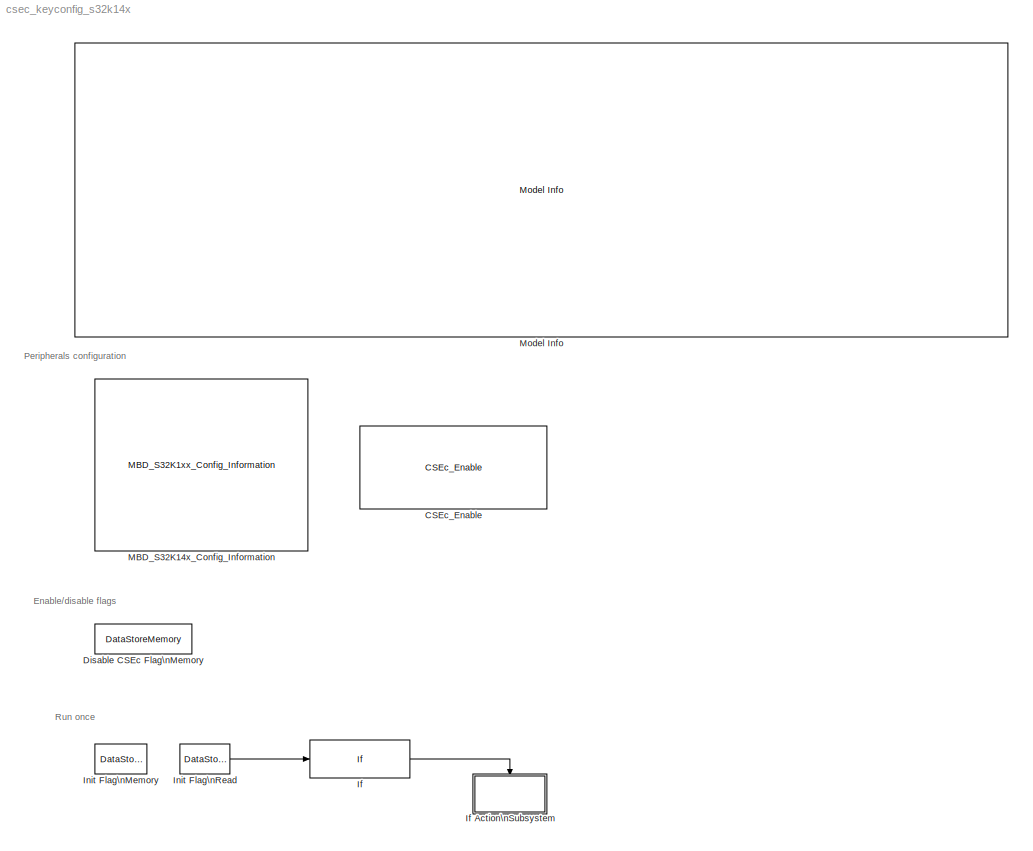
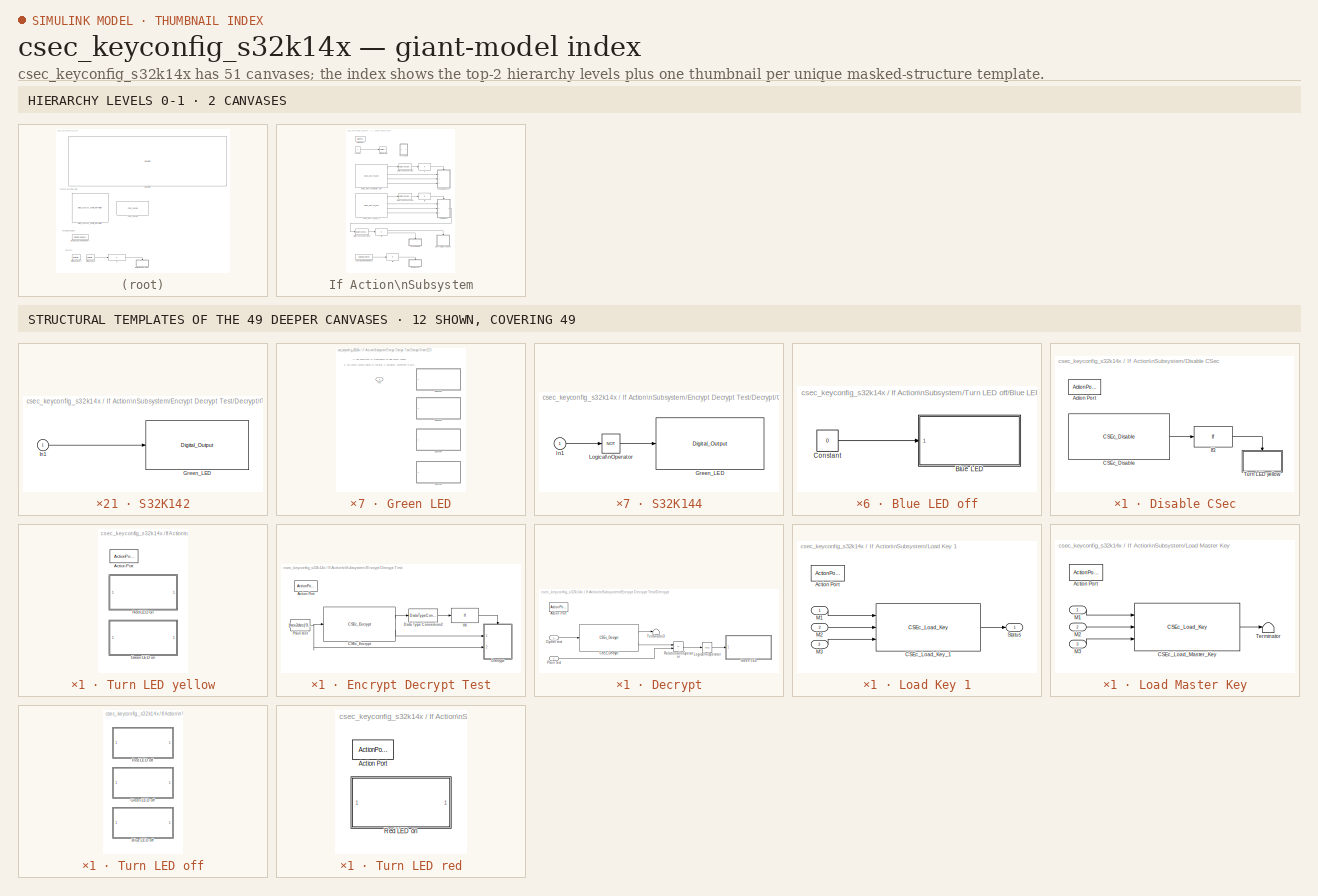
[diagram: thumbnail index - top-2 hierarchy levels (2 canvases) + 12 structural-template representatives of the remaining 49 canvases]
MODEL csec_keyconfig_s32k14x
KIND model
CONFIG InitFcn = mbd_s32k_consistency_checks(bdroot(gcs));
CONFIG PreLoadFcn = mbd_s32k_examples_preload_cbk;
BLOCK [Reference] CSEc_Enable  REF=mbd_s32k1xx_ec_toolbox/Core and System Blocks/CSEc Blocks/CSEc_Enable
  Ports = []
  SID = 480
  SourceBlock = mbd_s32k1xx_ec_toolbox/Core and System Blocks/CSEc Blocks/CSEc_Enable
  SourceType = csec_s32k_enable
  csec_num_user_keys = 20 keys
BLOCK [DataStoreMemory] Disable CSEc Flag\nMemory
  DataStoreName = disable_csec_flag
  InitialValue = 1
  OutDataTypeStr = uint32
  ReadBeforeWriteMsg = warning
  SID = 493
  ShowAdditionalParam = off
  WriteAfterReadMsg = warning
  WriteAfterWriteMsg = warning
BLOCK [If] If
  IfExpression = u1 == 0
  Ports = [1, 1]
  SID = 144
  ShowElse = off
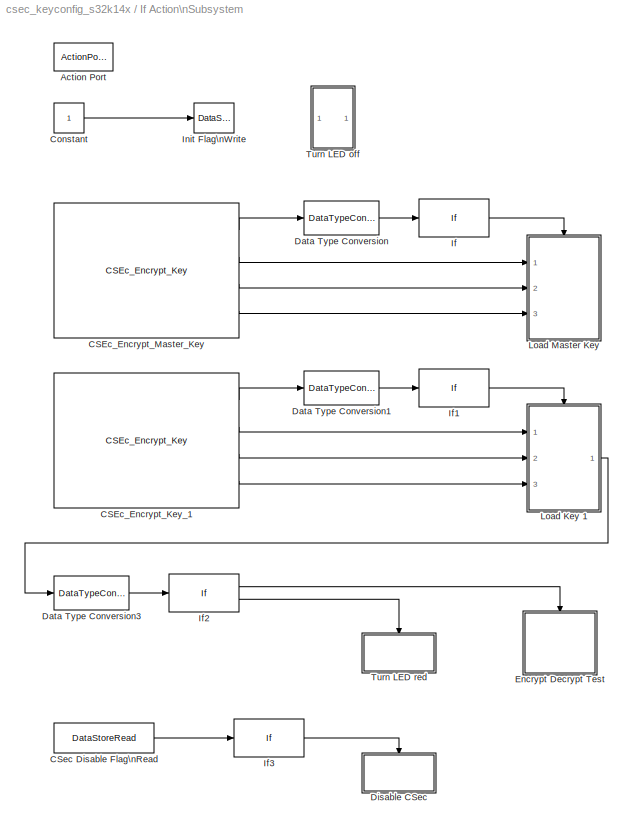
BLOCK [SubSystem] If Action\nSubsystem
  Ports = [0, 0, 0, 0, 0, 0, 0, 1]
  RequestExecContextInheritance = off
  SID = 145
  TreatAsAtomicUnit = on
  Variant = off
BLOCK [ActionPort] If Action\nSubsystem/Action Port
  SID = 147
BLOCK [Reference] If Action\nSubsystem/CSEc_Encrypt_Key_1  REF=mbd_s32k1xx_ec_toolbox/Core and System Blocks/CSEc Blocks/CSEc_Encrypt_Key
  Ports = [0, 4]
  Priority = 3
  SID = 519
  SourceBlock = mbd_s32k1xx_ec_toolbox/Core and System Blocks/CSEc Blocks/CSEc_Encrypt_Key
  SourceType = csec_s32k_encrypt_key
  csec_auth_key = {'0x00', '0x01', '0x02', '0x03', '0x04', '0x05', '0x06', '0x07', '0x08', '0x09', '0x0a', '0x0b', '0x0c', '0x0d', '0x0e', '0x0f'}
  csec_auth_key_id = MASTER_ECU
  csec_counter = 1
  csec_key = {'0x00', '0x01', '0x02', '0x03', '0x04', '0x05', '0x06', '0x07', '0x08', '0x09', '0x0a', '0x0b', '0x0c', '0x0d', '0x0e', '0x0f'}
  csec_key_id = KEY_1
BLOCK [Reference] If Action\nSubsystem/CSEc_Encrypt_Master_Key  REF=mbd_s32k1xx_ec_toolbox/Core and System Blocks/CSEc Blocks/CSEc_Encrypt_Key
  Ports = [0, 4]
  Priority = 2
  SID = 518
  SourceBlock = mbd_s32k1xx_ec_toolbox/Core and System Blocks/CSEc Blocks/CSEc_Encrypt_Key
  SourceType = csec_s32k_encrypt_key
  csec_auth_key = {'0xff', '0xff', '0xff', '0xff', '0xff', '0xff', '0xff', '0xff', '0xff', '0xff', '0xff', '0xff', '0xff', '0xff', '0xff', '0xff'}
  csec_auth_key_id = MASTER_ECU
  csec_counter = 1
  csec_key = {'0x00', '0x01', '0x02', '0x03', '0x04', '0x05', '0x06', '0x07', '0x08', '0x09', '0x0a', '0x0b', '0x0c', '0x0d', '0x0e', '0x0f'}
  csec_key_id = MASTER_ECU
BLOCK [DataStoreRead] If Action\nSubsystem/CSec Disable Flag\nRead
  DataStoreName = disable_csec_flag
  Ports = [0, 1]
  SID = 494
BLOCK [Constant] If Action\nSubsystem/Constant
  OutDataTypeStr = uint32
  SID = 462
BLOCK [DataTypeConversion] If Action\nSubsystem/Data Type Conversion
  OutDataTypeStr = uint32
  RndMeth = Floor
  SID = 571
  SaturateOnIntegerOverflow = off
BLOCK [DataTypeConversion] If Action\nSubsystem/Data Type Conversion1
  OutDataTypeStr = uint32
  RndMeth = Floor
  SID = 572
  SaturateOnIntegerOverflow = off
BLOCK [DataTypeConversion] If Action\nSubsystem/Data Type Conversion3
  OutDataTypeStr = uint32
  RndMeth = Floor
  SID = 575
  SaturateOnIntegerOverflow = off
BLOCK [SubSystem] If Action\nSubsystem/Disable CSec
  Ports = [0, 0, 0, 0, 0, 0, 0, 1]
  Priority = 5
  RequestExecContextInheritance = off
  SID = 486
  TreatAsAtomicUnit = on
  Variant = off
BLOCK [ActionPort] If Action\nSubsystem/Disable CSec/Action Port
  SID = 487
BLOCK [Reference] If Action\nSubsystem/Disable CSec/CSEc_Disable  REF=mbd_s32k1xx_ec_toolbox/Core and System Blocks/CSEc Blocks/CSEc_Disable
  Ports = [0, 1]
  SID = 484
  SourceBlock = mbd_s32k1xx_ec_toolbox/Core and System Blocks/CSEc Blocks/CSEc_Disable
  SourceType = csec_s32k_disable
  csec_master_key = {'0x00', '0x01', '0x02', '0x03', '0x04', '0x05', '0x06', '0x07', '0x08', '0x09', '0x0a', '0x0b', '0x0c', '0x0d', '0x0e', '0x0f'}
BLOCK [If] If Action\nSubsystem/Disable CSec/If3
  IfExpression = u1 == 1
  Ports = [1, 1]
  SID = 595
  ShowElse = off
BLOCK [SubSystem] If Action\nSubsystem/Disable CSec/Turn LED yellow
  Ports = [0, 0, 0, 0, 0, 0, 0, 1]
  Priority = 4
  RequestExecContextInheritance = off
  SID = 596
  TreatAsAtomicUnit = on
  Variant = off
BLOCK [ActionPort] If Action\nSubsystem/Disable CSec/Turn LED yellow/Action Port
  SID = 597
BLOCK [SubSystem] If Action\nSubsystem/Disable CSec/Turn LED yellow/Green LED on
  Ports = []
  RequestExecContextInheritance = off
  SID = 1594
  Variant = off
BLOCK [Constant] If Action\nSubsystem/Disable CSec/Turn LED yellow/Green LED on/Constant
  OutDataTypeStr = boolean
  SID = 1595
BLOCK [SubSystem] If Action\nSubsystem/Disable CSec/Turn LED yellow/Green LED on/Green LED
  Ports = [1]
  RequestExecContextInheritance = off
  SID = 1596
  Variant = on
BLOCK [Inport] If Action\nSubsystem/Disable CSec/Turn LED yellow/Green LED on/Green LED/In1
  IconDisplay = Port number
  SID = 1597
BLOCK [SubSystem] If Action\nSubsystem/Disable CSec/Turn LED yellow/Green LED on/Green LED/S32K142
  Ports = [1]
  RequestExecContextInheritance = off
  SID = 1598
  Variant = off
  VariantControl = VSS_S32k142
BLOCK [Reference] If Action\nSubsystem/Disable CSec/Turn LED yellow/Green LED on/Green LED/S32K142/Green_LED  REF=mbd_s32k1xx_ec_toolbox/GPIO Blocks/Digital_Output
  Ports = [1]
  SID = 1600
  SourceBlock = mbd_s32k1xx_ec_toolbox/GPIO Blocks/Digital_Output
  SourceType = gpio_s32k_output
  drive_strength = Low
  gpio_pin = PTD16: [PTD16 | Port D I/O]
  init_val = Low
BLOCK [Inport] If Action\nSubsystem/Disable CSec/Turn LED yellow/Green LED on/Green LED/S32K142/In1
  IconDisplay = Port number
  SID = 1599
BLOCK [SubSystem] If Action\nSubsystem/Disable CSec/Turn LED yellow/Green LED on/Green LED/S32K144
  Ports = [1]
  RequestExecContextInheritance = off
  SID = 1601
  Variant = off
  VariantControl = VSS_S32k144
BLOCK [Reference] If Action\nSubsystem/Disable CSec/Turn LED yellow/Green LED on/Green LED/S32K144/Green_LED  REF=mbd_s32k1xx_ec_toolbox/GPIO Blocks/Digital_Output
  Ports = [1]
  SID = 1603
  SourceBlock = mbd_s32k1xx_ec_toolbox/GPIO Blocks/Digital_Output
  SourceType = gpio_s32k_output
  drive_strength = Low
  gpio_pin = PTD16: [PTD16 | Port D I/O]
  init_val = Low
BLOCK [Inport] If Action\nSubsystem/Disable CSec/Turn LED yellow/Green LED on/Green LED/S32K144/In1
  IconDisplay = Port number
  SID = 1602
BLOCK [Logic] If Action\nSubsystem/Disable CSec/Turn LED yellow/Green LED on/Green LED/S32K144/Logical\nOperator
  AllPortsSameDT = off
  Operator = NOT
  OutDataTypeStr = boolean
  Ports = [1, 1]
  SID = 1604
BLOCK [SubSystem] If Action\nSubsystem/Disable CSec/Turn LED yellow/Green LED on/Green LED/S32K146
  Ports = [1]
  RequestExecContextInheritance = off
  SID = 1605
  Variant = off
  VariantControl = VSS_S32k146
BLOCK [Reference] If Action\nSubsystem/Disable CSec/Turn LED yellow/Green LED on/Green LED/S32K146/Green_LED  REF=mbd_s32k1xx_ec_toolbox/GPIO Blocks/Digital_Output
  Ports = [1]
  SID = 1607
  SourceBlock = mbd_s32k1xx_ec_toolbox/GPIO Blocks/Digital_Output
  SourceType = gpio_s32k_output
  drive_strength = Low
  gpio_pin = PTD16: [PTD16 | Port D I/O]
  init_val = Low
BLOCK [Inport] If Action\nSubsystem/Disable CSec/Turn LED yellow/Green LED on/Green LED/S32K146/In1
  IconDisplay = Port number
  SID = 1606
BLOCK [SubSystem] If Action\nSubsystem/Disable CSec/Turn LED yellow/Green LED on/Green LED/S32K148
  Ports = [1]
  RequestExecContextInheritance = off
  SID = 1608
  Variant = off
  VariantControl = VSS_S32k148
BLOCK [Reference] If Action\nSubsystem/Disable CSec/Turn LED yellow/Green LED on/Green LED/S32K148/Green_LED  REF=mbd_s32k1xx_ec_toolbox/GPIO Blocks/Digital_Output
  Ports = [1]
  SID = 1610
  SourceBlock = mbd_s32k1xx_ec_toolbox/GPIO Blocks/Digital_Output
  SourceType = gpio_s32k_output
  drive_strength = Low
  gpio_pin = PTE22: [PTE22 | Port E I/O]
  init_val = Low
BLOCK [Inport] If Action\nSubsystem/Disable CSec/Turn LED yellow/Green LED on/Green LED/S32K148/In1
  IconDisplay = Port number
  SID = 1609
BLOCK [SubSystem] If Action\nSubsystem/Disable CSec/Turn LED yellow/Red LED on
  Ports = []
  RequestExecContextInheritance = off
  SID = 1612
  Variant = off
BLOCK [Constant] If Action\nSubsystem/Disable CSec/Turn LED yellow/Red LED on/Constant
  OutDataTypeStr = boolean
  SID = 1613
BLOCK [SubSystem] If Action\nSubsystem/Disable CSec/Turn LED yellow/Red LED on/Red LED
  Ports = [1]
  RequestExecContextInheritance = off
  SID = 1614
  Variant = on
BLOCK [Inport] If Action\nSubsystem/Disable CSec/Turn LED yellow/Red LED on/Red LED/In1
  IconDisplay = Port number
  SID = 1615
BLOCK [SubSystem] If Action\nSubsystem/Disable CSec/Turn LED yellow/Red LED on/Red LED/S32K142
  Ports = [1]
  RequestExecContextInheritance = off
  SID = 1616
  Variant = off
  VariantControl = VSS_S32k142
BLOCK [Inport] If Action\nSubsystem/Disable CSec/Turn LED yellow/Red LED on/Red LED/S32K142/In1
  IconDisplay = Port number
  SID = 1617
BLOCK [Reference] If Action\nSubsystem/Disable CSec/Turn LED yellow/Red LED on/Red LED/S32K142/Red_LED  REF=mbd_s32k1xx_ec_toolbox/GPIO Blocks/Digital_Output
  Ports = [1]
  SID = 1618
  SourceBlock = mbd_s32k1xx_ec_toolbox/GPIO Blocks/Digital_Output
  SourceType = gpio_s32k_output
  drive_strength = Low
  gpio_pin = PTD15: [PTD15 | Port D I/O]
  init_val = Low
BLOCK [SubSystem] If Action\nSubsystem/Disable CSec/Turn LED yellow/Red LED on/Red LED/S32K144
  Ports = [1]
  RequestExecContextInheritance = off
  SID = 1619
  Variant = off
  VariantControl = VSS_S32k144
BLOCK [Inport] If Action\nSubsystem/Disable CSec/Turn LED yellow/Red LED on/Red LED/S32K144/In1
  IconDisplay = Port number
  SID = 1620
BLOCK [Logic] If Action\nSubsystem/Disable CSec/Turn LED yellow/Red LED on/Red LED/S32K144/Logical\nOperator
  AllPortsSameDT = off
  Operator = NOT
  OutDataTypeStr = boolean
  Ports = [1, 1]
  SID = 1621
BLOCK [Reference] If Action\nSubsystem/Disable CSec/Turn LED yellow/Red LED on/Red LED/S32K144/Red_LED  REF=mbd_s32k1xx_ec_toolbox/GPIO Blocks/Digital_Output
  Ports = [1]
  SID = 1622
  SourceBlock = mbd_s32k1xx_ec_toolbox/GPIO Blocks/Digital_Output
  SourceType = gpio_s32k_output
  drive_strength = Low
  gpio_pin = PTD15: [PTD15 | Port D I/O]
  init_val = Low
BLOCK [SubSystem] If Action\nSubsystem/Disable CSec/Turn LED yellow/Red LED on/Red LED/S32K146
  Ports = [1]
  RequestExecContextInheritance = off
  SID = 1623
  Variant = off
  VariantControl = VSS_S32k146
BLOCK [Inport] If Action\nSubsystem/Disable CSec/Turn LED yellow/Red LED on/Red LED/S32K146/In1
  IconDisplay = Port number
  SID = 1624
BLOCK [Reference] If Action\nSubsystem/Disable CSec/Turn LED yellow/Red LED on/Red LED/S32K146/Red_LED  REF=mbd_s32k1xx_ec_toolbox/GPIO Blocks/Digital_Output
  Ports = [1]
  SID = 1625
  SourceBlock = mbd_s32k1xx_ec_toolbox/GPIO Blocks/Digital_Output
  SourceType = gpio_s32k_output
  drive_strength = Low
  gpio_pin = PTD15: [PTD15 | Port D I/O]
  init_val = Low
BLOCK [SubSystem] If Action\nSubsystem/Disable CSec/Turn LED yellow/Red LED on/Red LED/S32K148
  Ports = [1]
  RequestExecContextInheritance = off
  SID = 1626
  Variant = off
  VariantControl = VSS_S32k148
BLOCK [Inport] If Action\nSubsystem/Disable CSec/Turn LED yellow/Red LED on/Red LED/S32K148/In1
  IconDisplay = Port number
  SID = 1627
BLOCK [Reference] If Action\nSubsystem/Disable CSec/Turn LED yellow/Red LED on/Red LED/S32K148/Red_LED  REF=mbd_s32k1xx_ec_toolbox/GPIO Blocks/Digital_Output
  Ports = [1]
  SID = 1628
  SourceBlock = mbd_s32k1xx_ec_toolbox/GPIO Blocks/Digital_Output
  SourceType = gpio_s32k_output
  drive_strength = Low
  gpio_pin = PTE21: [PTE21 | Port E I/O]
  init_val = Low
BLOCK [SubSystem] If Action\nSubsystem/Encrypt Decrypt Test
  Ports = [0, 0, 0, 0, 0, 0, 0, 1]
  RequestExecContextInheritance = off
  SID = 584
  Variant = off
BLOCK [ActionPort] If Action\nSubsystem/Encrypt Decrypt Test/Action Port
  SID = 588
BLOCK [Reference] If Action\nSubsystem/Encrypt Decrypt Test/CSEc_Encrypt  REF=mbd_s32k1xx_ec_toolbox/Core and System Blocks/CSEc Blocks/CSEc_Encrypt
  Ports = [1, 2]
  Priority = 4
  SID = 483
  SourceBlock = mbd_s32k1xx_ec_toolbox/Core and System Blocks/CSEc Blocks/CSEc_Encrypt
  SourceType = csec_s32k_encrypt
  csec_key_id = KEY_1
  csec_mode = Electronic Codebook (ECB)
  csec_timeout = 0
BLOCK [DataTypeConversion] If Action\nSubsystem/Encrypt Decrypt Test/Data Type Conversion2
  OutDataTypeStr = uint32
  RndMeth = Floor
  SID = 574
  SaturateOnIntegerOverflow = off
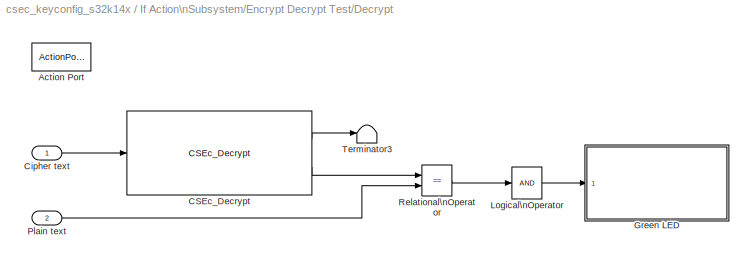
BLOCK [SubSystem] If Action\nSubsystem/Encrypt Decrypt Test/Decrypt
  Ports = [2, 0, 0, 0, 0, 0, 0, 1]
  Priority = 4
  RequestExecContextInheritance = off
  SID = 563
  Variant = off
BLOCK [ActionPort] If Action\nSubsystem/Encrypt Decrypt Test/Decrypt/Action Port
  SID = 566
BLOCK [Reference] If Action\nSubsystem/Encrypt Decrypt Test/Decrypt/CSEc_Decrypt  REF=mbd_s32k1xx_ec_toolbox/Core and System Blocks/CSEc Blocks/CSEc_Decrypt
  Ports = [1, 2]
  Priority = 3
  SID = 513
  SourceBlock = mbd_s32k1xx_ec_toolbox/Core and System Blocks/CSEc Blocks/CSEc_Decrypt
  SourceType = csec_s32k_decrypt
  csec_key_id = KEY_1
  csec_mode = Electronic Codebook (ECB)
  csec_timeout = 1
BLOCK [Inport] If Action\nSubsystem/Encrypt Decrypt Test/Decrypt/Cipher text
  IconDisplay = Port number
  SID = 565
BLOCK [SubSystem] If Action\nSubsystem/Encrypt Decrypt Test/Decrypt/Green LED
  Ports = [1]
  RequestExecContextInheritance = off
  SID = 1578
  Variant = on
BLOCK [Inport] If Action\nSubsystem/Encrypt Decrypt Test/Decrypt/Green LED/In1
  IconDisplay = Port number
  SID = 1579
BLOCK [SubSystem] If Action\nSubsystem/Encrypt Decrypt Test/Decrypt/Green LED/S32K142
  Ports = [1]
  RequestExecContextInheritance = off
  SID = 1580
  Variant = off
  VariantControl = VSS_S32k142
BLOCK [Reference] If Action\nSubsystem/Encrypt Decrypt Test/Decrypt/Green LED/S32K142/Green_LED  REF=mbd_s32k1xx_ec_toolbox/GPIO Blocks/Digital_Output
  Ports = [1]
  SID = 1582
  SourceBlock = mbd_s32k1xx_ec_toolbox/GPIO Blocks/Digital_Output
  SourceType = gpio_s32k_output
  drive_strength = Low
  gpio_pin = PTD16: [PTD16 | Port D I/O]
  init_val = Low
BLOCK [Inport] If Action\nSubsystem/Encrypt Decrypt Test/Decrypt/Green LED/S32K142/In1
  IconDisplay = Port number
  SID = 1581
BLOCK [SubSystem] If Action\nSubsystem/Encrypt Decrypt Test/Decrypt/Green LED/S32K144
  Ports = [1]
  RequestExecContextInheritance = off
  SID = 1583
  Variant = off
  VariantControl = VSS_S32k144
BLOCK [Reference] If Action\nSubsystem/Encrypt Decrypt Test/Decrypt/Green LED/S32K144/Green_LED  REF=mbd_s32k1xx_ec_toolbox/GPIO Blocks/Digital_Output
  Ports = [1]
  SID = 1585
  SourceBlock = mbd_s32k1xx_ec_toolbox/GPIO Blocks/Digital_Output
  SourceType = gpio_s32k_output
  drive_strength = Low
  gpio_pin = PTD16: [PTD16 | Port D I/O]
  init_val = Low
BLOCK [Inport] If Action\nSubsystem/Encrypt Decrypt Test/Decrypt/Green LED/S32K144/In1
  IconDisplay = Port number
  SID = 1584
BLOCK [Logic] If Action\nSubsystem/Encrypt Decrypt Test/Decrypt/Green LED/S32K144/Logical\nOperator
  AllPortsSameDT = off
  Operator = NOT
  OutDataTypeStr = boolean
  Ports = [1, 1]
  SID = 1586
BLOCK [SubSystem] If Action\nSubsystem/Encrypt Decrypt Test/Decrypt/Green LED/S32K146
  Ports = [1]
  RequestExecContextInheritance = off
  SID = 1587
  Variant = off
  VariantControl = VSS_S32k146
BLOCK [Reference] If Action\nSubsystem/Encrypt Decrypt Test/Decrypt/Green LED/S32K146/Green_LED  REF=mbd_s32k1xx_ec_toolbox/GPIO Blocks/Digital_Output
  Ports = [1]
  SID = 1589
  SourceBlock = mbd_s32k1xx_ec_toolbox/GPIO Blocks/Digital_Output
  SourceType = gpio_s32k_output
  drive_strength = Low
  gpio_pin = PTD16: [PTD16 | Port D I/O]
  init_val = Low
BLOCK [Inport] If Action\nSubsystem/Encrypt Decrypt Test/Decrypt/Green LED/S32K146/In1
  IconDisplay = Port number
  SID = 1588
BLOCK [SubSystem] If Action\nSubsystem/Encrypt Decrypt Test/Decrypt/Green LED/S32K148
  Ports = [1]
  RequestExecContextInheritance = off
  SID = 1590
  Variant = off
  VariantControl = VSS_S32k148
BLOCK [Reference] If Action\nSubsystem/Encrypt Decrypt Test/Decrypt/Green LED/S32K148/Green_LED  REF=mbd_s32k1xx_ec_toolbox/GPIO Blocks/Digital_Output
  Ports = [1]
  SID = 1592
  SourceBlock = mbd_s32k1xx_ec_toolbox/GPIO Blocks/Digital_Output
  SourceType = gpio_s32k_output
  drive_strength = Low
  gpio_pin = PTE22: [PTE22 | Port E I/O]
  init_val = Low
BLOCK [Inport] If Action\nSubsystem/Encrypt Decrypt Test/Decrypt/Green LED/S32K148/In1
  IconDisplay = Port number
  SID = 1591
BLOCK [Logic] If Action\nSubsystem/Encrypt Decrypt Test/Decrypt/Logical\nOperator
  AllPortsSameDT = off
  Inputs = 1
  OutDataTypeStr = boolean
  Ports = [1, 1]
  SID = 529
BLOCK [Inport] If Action\nSubsystem/Encrypt Decrypt Test/Decrypt/Plain text
  IconDisplay = Port number
  Port = 2
  SID = 573
BLOCK [RelationalOperator] If Action\nSubsystem/Encrypt Decrypt Test/Decrypt/Relational\nOperator
  InputSameDT = off
  Operator = ==
  OutDataTypeStr = boolean
  Ports = [2, 1]
  SID = 530
BLOCK [Terminator] If Action\nSubsystem/Encrypt Decrypt Test/Decrypt/Terminator3
  SID = 515
BLOCK [If] If Action\nSubsystem/Encrypt Decrypt Test/If4
  IfExpression = u1 == 0
  Ports = [1, 1]
  SID = 567
  ShowElse = off
BLOCK [Constant] If Action\nSubsystem/Encrypt Decrypt Test/Plain text
  OutDataTypeStr = uint8
  SID = 509
  Value = [hex2dec('00'), hex2dec('11'), hex2dec('22'), hex2dec('33'), hex2dec('44'), hex2dec('55'), hex2dec('66'), hex2dec('77'), hex2dec('88'), hex2dec('99'), hex2dec('aa'), hex2dec('bb'), hex2dec('cc'), hex2dec('dd'), hex2dec('ee'), hex2dec('ff')]
BLOCK [If] If Action\nSubsystem/If
  IfExpression = u1 == 0
  Ports = [1, 1]
  SID = 556
  ShowElse = off
BLOCK [If] If Action\nSubsystem/If1
  IfExpression = u1 == 0
  Ports = [1, 1]
  SID = 562
  ShowElse = off
BLOCK [If] If Action\nSubsystem/If2
  IfExpression = u1 == 0
  Ports = [1, 2]
  SID = 543
BLOCK [If] If Action\nSubsystem/If3
  IfExpression = u1 == 1
  Ports = [1, 1]
  SID = 485
  ShowElse = off
BLOCK [DataStoreWrite] If Action\nSubsystem/Init Flag\nWrite
  DataStoreName = init_flag
  Ports = [1]
  SID = 461
BLOCK [SubSystem] If Action\nSubsystem/Load Key 1
  Ports = [3, 1, 0, 0, 0, 0, 0, 1]
  Priority = 3
  RequestExecContextInheritance = off
  SID = 557
  Variant = off
BLOCK [ActionPort] If Action\nSubsystem/Load Key 1/Action Port
  SID = 561
BLOCK [Reference] If Action\nSubsystem/Load Key 1/CSEc_Load_Key_1  REF=mbd_s32k1xx_ec_toolbox/Core and System Blocks/CSEc Blocks/CSEc_Load_Key
  Ports = [3, 1]
  SID = 495
  SourceBlock = mbd_s32k1xx_ec_toolbox/Core and System Blocks/CSEc Blocks/CSEc_Load_Key
  SourceType = csec_s32k_load_key
  csec_key_id = KEY_1
  csec_load_plain_key = off
BLOCK [Inport] If Action\nSubsystem/Load Key 1/M1
  IconDisplay = Port number
  SID = 558
BLOCK [Inport] If Action\nSubsystem/Load Key 1/M2
  IconDisplay = Port number
  Port = 2
  SID = 559
BLOCK [Inport] If Action\nSubsystem/Load Key 1/M3
  IconDisplay = Port number
  Port = 3
  SID = 560
BLOCK [Outport] If Action\nSubsystem/Load Key 1/Status
  IconDisplay = Port number
  SID = 585
BLOCK [SubSystem] If Action\nSubsystem/Load Master Key
  Ports = [3, 0, 0, 0, 0, 0, 0, 1]
  Priority = 2
  RequestExecContextInheritance = off
  SID = 551
  Variant = off
BLOCK [ActionPort] If Action\nSubsystem/Load Master Key/Action Port
  SID = 568
BLOCK [Reference] If Action\nSubsystem/Load Master Key/CSEc_Load_Master_Key  REF=mbd_s32k1xx_ec_toolbox/Core and System Blocks/CSEc Blocks/CSEc_Load_Key
  Ports = [3, 1]
  SID = 482
  SourceBlock = mbd_s32k1xx_ec_toolbox/Core and System Blocks/CSEc Blocks/CSEc_Load_Key
  SourceType = csec_s32k_load_key
  csec_key_id = MASTER_ECU
  csec_load_plain_key = off
BLOCK [Inport] If Action\nSubsystem/Load Master Key/M1
  IconDisplay = Port number
  SID = 552
BLOCK [Inport] If Action\nSubsystem/Load Master Key/M2
  IconDisplay = Port number
  Port = 2
  SID = 553
BLOCK [Inport] If Action\nSubsystem/Load Master Key/M3
  IconDisplay = Port number
  Port = 3
  SID = 554
BLOCK [Terminator] If Action\nSubsystem/Load Master Key/Terminator
  SID = 583
BLOCK [SubSystem] If Action\nSubsystem/Turn LED off
  Ports = []
  Priority = 1
  RequestExecContextInheritance = off
  SID = 579
  Variant = off
BLOCK [SubSystem] If Action\nSubsystem/Turn LED off/Blue LED off
  Ports = []
  RequestExecContextInheritance = off
  SID = 1362
  Variant = off
BLOCK [SubSystem] If Action\nSubsystem/Turn LED off/Blue LED off/Blue LED
  Ports = [1]
  RequestExecContextInheritance = off
  SID = 1363
  Variant = on
BLOCK [Inport] If Action\nSubsystem/Turn LED off/Blue LED off/Blue LED/In1
  IconDisplay = Port number
  SID = 1364
BLOCK [SubSystem] If Action\nSubsystem/Turn LED off/Blue LED off/Blue LED/S32K142
  Ports = [1]
  RequestExecContextInheritance = off
  SID = 1365
  Variant = off
  VariantControl = VSS_S32k142
BLOCK [Reference] If Action\nSubsystem/Turn LED off/Blue LED off/Blue LED/S32K142/Blue_LED  REF=mbd_s32k1xx_ec_toolbox/GPIO Blocks/Digital_Output
  Ports = [1]
  SID = 1367
  SourceBlock = mbd_s32k1xx_ec_toolbox/GPIO Blocks/Digital_Output
  SourceType = gpio_s32k_output
  drive_strength = Low
  gpio_pin = PTD0: [PTD0 | Port D I/O]
  init_val = Low
BLOCK [Inport] If Action\nSubsystem/Turn LED off/Blue LED off/Blue LED/S32K142/In1
  IconDisplay = Port number
  SID = 1366
BLOCK [SubSystem] If Action\nSubsystem/Turn LED off/Blue LED off/Blue LED/S32K144
  Ports = [1]
  RequestExecContextInheritance = off
  SID = 1368
  Variant = off
  VariantControl = VSS_S32k144
BLOCK [Reference] If Action\nSubsystem/Turn LED off/Blue LED off/Blue LED/S32K144/Blue_LED  REF=mbd_s32k1xx_ec_toolbox/GPIO Blocks/Digital_Output
  Ports = [1]
  SID = 1370
  SourceBlock = mbd_s32k1xx_ec_toolbox/GPIO Blocks/Digital_Output
  SourceType = gpio_s32k_output
  drive_strength = Low
  gpio_pin = PTD0: [PTD0 | Port D I/O]
  init_val = Low
BLOCK [Inport] If Action\nSubsystem/Turn LED off/Blue LED off/Blue LED/S32K144/In1
  IconDisplay = Port number
  SID = 1369
BLOCK [Logic] If Action\nSubsystem/Turn LED off/Blue LED off/Blue LED/S32K144/Logical\nOperator
  AllPortsSameDT = off
  Operator = NOT
  OutDataTypeStr = boolean
  Ports = [1, 1]
  SID = 1371
BLOCK [SubSystem] If Action\nSubsystem/Turn LED off/Blue LED off/Blue LED/S32K146
  Ports = [1]
  RequestExecContextInheritance = off
  SID = 1372
  Variant = off
  VariantControl = VSS_S32k146
BLOCK [Reference] If Action\nSubsystem/Turn LED off/Blue LED off/Blue LED/S32K146/Blue_LED  REF=mbd_s32k1xx_ec_toolbox/GPIO Blocks/Digital_Output
  Ports = [1]
  SID = 1374
  SourceBlock = mbd_s32k1xx_ec_toolbox/GPIO Blocks/Digital_Output
  SourceType = gpio_s32k_output
  drive_strength = Low
  gpio_pin = PTD0: [PTD0 | Port D I/O]
  init_val = Low
BLOCK [Inport] If Action\nSubsystem/Turn LED off/Blue LED off/Blue LED/S32K146/In1
  IconDisplay = Port number
  SID = 1373
BLOCK [SubSystem] If Action\nSubsystem/Turn LED off/Blue LED off/Blue LED/S32K148
  Ports = [1]
  RequestExecContextInheritance = off
  SID = 1375
  Variant = off
  VariantControl = VSS_S32k148
BLOCK [Reference] If Action\nSubsystem/Turn LED off/Blue LED off/Blue LED/S32K148/Blue_LED  REF=mbd_s32k1xx_ec_toolbox/GPIO Blocks/Digital_Output
  Ports = [1]
  SID = 1377
  SourceBlock = mbd_s32k1xx_ec_toolbox/GPIO Blocks/Digital_Output
  SourceType = gpio_s32k_output
  drive_strength = Low
  gpio_pin = PTE23: [PTE23 | Port E I/O]
  init_val = Low
BLOCK [Inport] If Action\nSubsystem/Turn LED off/Blue LED off/Blue LED/S32K148/In1
  IconDisplay = Port number
  SID = 1376
BLOCK [Constant] If Action\nSubsystem/Turn LED off/Blue LED off/Constant
  OutDataTypeStr = boolean
  SID = 1379
  Value = 0
BLOCK [SubSystem] If Action\nSubsystem/Turn LED off/Green LED off
  Ports = []
  RequestExecContextInheritance = off
  SID = 1398
  Variant = off
BLOCK [Constant] If Action\nSubsystem/Turn LED off/Green LED off/Constant
  OutDataTypeStr = boolean
  SID = 1399
  Value = 0
BLOCK [SubSystem] If Action\nSubsystem/Turn LED off/Green LED off/Green LED
  Ports = [1]
  RequestExecContextInheritance = off
  SID = 1400
  Variant = on
BLOCK [Inport] If Action\nSubsystem/Turn LED off/Green LED off/Green LED/In1
  IconDisplay = Port number
  SID = 1401
BLOCK [SubSystem] If Action\nSubsystem/Turn LED off/Green LED off/Green LED/S32K142
  Ports = [1]
  RequestExecContextInheritance = off
  SID = 1402
  Variant = off
  VariantControl = VSS_S32k142
BLOCK [Reference] If Action\nSubsystem/Turn LED off/Green LED off/Green LED/S32K142/Green_LED  REF=mbd_s32k1xx_ec_toolbox/GPIO Blocks/Digital_Output
  Ports = [1]
  SID = 1404
  SourceBlock = mbd_s32k1xx_ec_toolbox/GPIO Blocks/Digital_Output
  SourceType = gpio_s32k_output
  drive_strength = Low
  gpio_pin = PTD16: [PTD16 | Port D I/O]
  init_val = Low
BLOCK [Inport] If Action\nSubsystem/Turn LED off/Green LED off/Green LED/S32K142/In1
  IconDisplay = Port number
  SID = 1403
BLOCK [SubSystem] If Action\nSubsystem/Turn LED off/Green LED off/Green LED/S32K144
  Ports = [1]
  RequestExecContextInheritance = off
  SID = 1405
  Variant = off
  VariantControl = VSS_S32k144
BLOCK [Reference] If Action\nSubsystem/Turn LED off/Green LED off/Green LED/S32K144/Green_LED  REF=mbd_s32k1xx_ec_toolbox/GPIO Blocks/Digital_Output
  Ports = [1]
  SID = 1407
  SourceBlock = mbd_s32k1xx_ec_toolbox/GPIO Blocks/Digital_Output
  SourceType = gpio_s32k_output
  drive_strength = Low
  gpio_pin = PTD16: [PTD16 | Port D I/O]
  init_val = Low
BLOCK [Inport] If Action\nSubsystem/Turn LED off/Green LED off/Green LED/S32K144/In1
  IconDisplay = Port number
  SID = 1406
BLOCK [Logic] If Action\nSubsystem/Turn LED off/Green LED off/Green LED/S32K144/Logical\nOperator
  AllPortsSameDT = off
  Operator = NOT
  OutDataTypeStr = boolean
  Ports = [1, 1]
  SID = 1408
BLOCK [SubSystem] If Action\nSubsystem/Turn LED off/Green LED off/Green LED/S32K146
  Ports = [1]
  RequestExecContextInheritance = off
  SID = 1409
  Variant = off
  VariantControl = VSS_S32k146
BLOCK [Reference] If Action\nSubsystem/Turn LED off/Green LED off/Green LED/S32K146/Green_LED  REF=mbd_s32k1xx_ec_toolbox/GPIO Blocks/Digital_Output
  Ports = [1]
  SID = 1411
  SourceBlock = mbd_s32k1xx_ec_toolbox/GPIO Blocks/Digital_Output
  SourceType = gpio_s32k_output
  drive_strength = Low
  gpio_pin = PTD16: [PTD16 | Port D I/O]
  init_val = Low
BLOCK [Inport] If Action\nSubsystem/Turn LED off/Green LED off/Green LED/S32K146/In1
  IconDisplay = Port number
  SID = 1410
BLOCK [SubSystem] If Action\nSubsystem/Turn LED off/Green LED off/Green LED/S32K148
  Ports = [1]
  RequestExecContextInheritance = off
  SID = 1412
  Variant = off
  VariantControl = VSS_S32k148
BLOCK [Reference] If Action\nSubsystem/Turn LED off/Green LED off/Green LED/S32K148/Green_LED  REF=mbd_s32k1xx_ec_toolbox/GPIO Blocks/Digital_Output
  Ports = [1]
  SID = 1414
  SourceBlock = mbd_s32k1xx_ec_toolbox/GPIO Blocks/Digital_Output
  SourceType = gpio_s32k_output
  drive_strength = Low
  gpio_pin = PTE22: [PTE22 | Port E I/O]
  init_val = Low
BLOCK [Inport] If Action\nSubsystem/Turn LED off/Green LED off/Green LED/S32K148/In1
  IconDisplay = Port number
  SID = 1413
BLOCK [SubSystem] If Action\nSubsystem/Turn LED off/Red LED off
  Ports = []
  RequestExecContextInheritance = off
  SID = 1434
  Variant = off
BLOCK [Constant] If Action\nSubsystem/Turn LED off/Red LED off/Constant
  OutDataTypeStr = boolean
  SID = 1435
  Value = 0
BLOCK [SubSystem] If Action\nSubsystem/Turn LED off/Red LED off/Red LED
  Ports = [1]
  RequestExecContextInheritance = off
  SID = 1436
  Variant = on
BLOCK [Inport] If Action\nSubsystem/Turn LED off/Red LED off/Red LED/In1
  IconDisplay = Port number
  SID = 1437
BLOCK [SubSystem] If Action\nSubsystem/Turn LED off/Red LED off/Red LED/S32K142
  Ports = [1]
  RequestExecContextInheritance = off
  SID = 1438
  Variant = off
  VariantControl = VSS_S32k142
BLOCK [Inport] If Action\nSubsystem/Turn LED off/Red LED off/Red LED/S32K142/In1
  IconDisplay = Port number
  SID = 1439
BLOCK [Reference] If Action\nSubsystem/Turn LED off/Red LED off/Red LED/S32K142/Red_LED  REF=mbd_s32k1xx_ec_toolbox/GPIO Blocks/Digital_Output
  Ports = [1]
  SID = 1440
  SourceBlock = mbd_s32k1xx_ec_toolbox/GPIO Blocks/Digital_Output
  SourceType = gpio_s32k_output
  drive_strength = Low
  gpio_pin = PTD15: [PTD15 | Port D I/O]
  init_val = Low
BLOCK [SubSystem] If Action\nSubsystem/Turn LED off/Red LED off/Red LED/S32K144
  Ports = [1]
  RequestExecContextInheritance = off
  SID = 1441
  Variant = off
  VariantControl = VSS_S32k144
BLOCK [Inport] If Action\nSubsystem/Turn LED off/Red LED off/Red LED/S32K144/In1
  IconDisplay = Port number
  SID = 1442
BLOCK [Logic] If Action\nSubsystem/Turn LED off/Red LED off/Red LED/S32K144/Logical\nOperator
  AllPortsSameDT = off
  Operator = NOT
  OutDataTypeStr = boolean
  Ports = [1, 1]
  SID = 1443
BLOCK [Reference] If Action\nSubsystem/Turn LED off/Red LED off/Red LED/S32K144/Red_LED  REF=mbd_s32k1xx_ec_toolbox/GPIO Blocks/Digital_Output
  Ports = [1]
  SID = 1444
  SourceBlock = mbd_s32k1xx_ec_toolbox/GPIO Blocks/Digital_Output
  SourceType = gpio_s32k_output
  drive_strength = Low
  gpio_pin = PTD15: [PTD15 | Port D I/O]
  init_val = Low
BLOCK [SubSystem] If Action\nSubsystem/Turn LED off/Red LED off/Red LED/S32K146
  Ports = [1]
  RequestExecContextInheritance = off
  SID = 1445
  Variant = off
  VariantControl = VSS_S32k146
BLOCK [Inport] If Action\nSubsystem/Turn LED off/Red LED off/Red LED/S32K146/In1
  IconDisplay = Port number
  SID = 1446
BLOCK [Reference] If Action\nSubsystem/Turn LED off/Red LED off/Red LED/S32K146/Red_LED  REF=mbd_s32k1xx_ec_toolbox/GPIO Blocks/Digital_Output
  Ports = [1]
  SID = 1447
  SourceBlock = mbd_s32k1xx_ec_toolbox/GPIO Blocks/Digital_Output
  SourceType = gpio_s32k_output
  drive_strength = Low
  gpio_pin = PTD15: [PTD15 | Port D I/O]
  init_val = Low
BLOCK [SubSystem] If Action\nSubsystem/Turn LED off/Red LED off/Red LED/S32K148
  Ports = [1]
  RequestExecContextInheritance = off
  SID = 1448
  Variant = off
  VariantControl = VSS_S32k148
BLOCK [Inport] If Action\nSubsystem/Turn LED off/Red LED off/Red LED/S32K148/In1
  IconDisplay = Port number
  SID = 1449
BLOCK [Reference] If Action\nSubsystem/Turn LED off/Red LED off/Red LED/S32K148/Red_LED  REF=mbd_s32k1xx_ec_toolbox/GPIO Blocks/Digital_Output
  Ports = [1]
  SID = 1450
  SourceBlock = mbd_s32k1xx_ec_toolbox/GPIO Blocks/Digital_Output
  SourceType = gpio_s32k_output
  drive_strength = Low
  gpio_pin = PTE21: [PTE21 | Port E I/O]
  init_val = Low
BLOCK [SubSystem] If Action\nSubsystem/Turn LED red
  Ports = [0, 0, 0, 0, 0, 0, 0, 1]
  Priority = 4
  RequestExecContextInheritance = off
  SID = 539
  TreatAsAtomicUnit = on
  Variant = off
BLOCK [ActionPort] If Action\nSubsystem/Turn LED red/Action Port
  SID = 540
BLOCK [SubSystem] If Action\nSubsystem/Turn LED red/Red LED on
  Ports = []
  RequestExecContextInheritance = off
  SID = 1560
  Variant = off
BLOCK [Constant] If Action\nSubsystem/Turn LED red/Red LED on/Constant
  OutDataTypeStr = boolean
  SID = 1561
BLOCK [SubSystem] If Action\nSubsystem/Turn LED red/Red LED on/Red LED
  Ports = [1]
  RequestExecContextInheritance = off
  SID = 1562
  Variant = on
BLOCK [Inport] If Action\nSubsystem/Turn LED red/Red LED on/Red LED/In1
  IconDisplay = Port number
  SID = 1563
BLOCK [SubSystem] If Action\nSubsystem/Turn LED red/Red LED on/Red LED/S32K142
  Ports = [1]
  RequestExecContextInheritance = off
  SID = 1564
  Variant = off
  VariantControl = VSS_S32k142
BLOCK [Inport] If Action\nSubsystem/Turn LED red/Red LED on/Red LED/S32K142/In1
  IconDisplay = Port number
  SID = 1565
BLOCK [Reference] If Action\nSubsystem/Turn LED red/Red LED on/Red LED/S32K142/Red_LED  REF=mbd_s32k1xx_ec_toolbox/GPIO Blocks/Digital_Output
  Ports = [1]
  SID = 1566
  SourceBlock = mbd_s32k1xx_ec_toolbox/GPIO Blocks/Digital_Output
  SourceType = gpio_s32k_output
  drive_strength = Low
  gpio_pin = PTD15: [PTD15 | Port D I/O]
  init_val = Low
BLOCK [SubSystem] If Action\nSubsystem/Turn LED red/Red LED on/Red LED/S32K144
  Ports = [1]
  RequestExecContextInheritance = off
  SID = 1567
  Variant = off
  VariantControl = VSS_S32k144
BLOCK [Inport] If Action\nSubsystem/Turn LED red/Red LED on/Red LED/S32K144/In1
  IconDisplay = Port number
  SID = 1568
BLOCK [Logic] If Action\nSubsystem/Turn LED red/Red LED on/Red LED/S32K144/Logical\nOperator
  AllPortsSameDT = off
  Operator = NOT
  OutDataTypeStr = boolean
  Ports = [1, 1]
  SID = 1569
BLOCK [Reference] If Action\nSubsystem/Turn LED red/Red LED on/Red LED/S32K144/Red_LED  REF=mbd_s32k1xx_ec_toolbox/GPIO Blocks/Digital_Output
  Ports = [1]
  SID = 1570
  SourceBlock = mbd_s32k1xx_ec_toolbox/GPIO Blocks/Digital_Output
  SourceType = gpio_s32k_output
  drive_strength = Low
  gpio_pin = PTD15: [PTD15 | Port D I/O]
  init_val = Low
BLOCK [SubSystem] If Action\nSubsystem/Turn LED red/Red LED on/Red LED/S32K146
  Ports = [1]
  RequestExecContextInheritance = off
  SID = 1571
  Variant = off
  VariantControl = VSS_S32k146
BLOCK [Inport] If Action\nSubsystem/Turn LED red/Red LED on/Red LED/S32K146/In1
  IconDisplay = Port number
  SID = 1572
BLOCK [Reference] If Action\nSubsystem/Turn LED red/Red LED on/Red LED/S32K146/Red_LED  REF=mbd_s32k1xx_ec_toolbox/GPIO Blocks/Digital_Output
  Ports = [1]
  SID = 1573
  SourceBlock = mbd_s32k1xx_ec_toolbox/GPIO Blocks/Digital_Output
  SourceType = gpio_s32k_output
  drive_strength = Low
  gpio_pin = PTD15: [PTD15 | Port D I/O]
  init_val = Low
BLOCK [SubSystem] If Action\nSubsystem/Turn LED red/Red LED on/Red LED/S32K148
  Ports = [1]
  RequestExecContextInheritance = off
  SID = 1574
  Variant = off
  VariantControl = VSS_S32k148
BLOCK [Inport] If Action\nSubsystem/Turn LED red/Red LED on/Red LED/S32K148/In1
  IconDisplay = Port number
  SID = 1575
BLOCK [Reference] If Action\nSubsystem/Turn LED red/Red LED on/Red LED/S32K148/Red_LED  REF=mbd_s32k1xx_ec_toolbox/GPIO Blocks/Digital_Output
  Ports = [1]
  SID = 1576
  SourceBlock = mbd_s32k1xx_ec_toolbox/GPIO Blocks/Digital_Output
  SourceType = gpio_s32k_output
  drive_strength = Low
  gpio_pin = PTE21: [PTE21 | Port E I/O]
  init_val = Low
BLOCK [DataStoreMemory] Init Flag\nMemory
  DataStoreName = init_flag
  OutDataTypeStr = uint32
  ReadBeforeWriteMsg = warning
  SID = 138
  ShowAdditionalParam = off
  WriteAfterReadMsg = warning
  WriteAfterWriteMsg = warning
BLOCK [DataStoreRead] Init Flag\nRead
  DataStoreName = init_flag
  Ports = [0, 1]
  SID = 139
BLOCK [Reference] MBD_S32K14x_Config_Information  REF=mbd_s32k1xx_ec_toolbox/MBD_S32K1xx_Config_Information
  ADC_PcrCheckEnDis = on
  AMMCLIB_PcrCheckEnDis = on
  CMP_PcrCheckEnDis = on
  CSEc_PcrCheckEnDis = on
  ConfigParams_PcrCheckEnDis = on
  FM_PcrCheckEnDis = on
  FTM_Dual_Edge_Inputs_PcrCheckEnDis = on
  FTM_Hall_Sensor_Inputs_PcrCheckEnDis = on
  FTM_Input_Edge_Inputs_PcrCheckEnDis = on
  FTM_PWM_PcrCheckEnDis = on
  FTM_Quadrature_Inputs_PcrCheckEnDis = on
  FlexCAN_PcrCheckEnDis = on
  FlexIO_PcrCheckEnDis = on
  GPIO_InputPcrCheckEnDis = on
  GPIO_OutputPcrCheckEnDis = on
  LIN_PcrCheckEnDis = on
  LPI2C_PcrCheckEnDis = on
  LPSPI_PcrCheckEnDis = on
  LPTMR_PcrCheckEnDis = on
  LPUART_PcrCheckEnDis = on
  ModelRef_PcrCheckEnDis = on
  PDB0_PcrCheckEnDis = on
  PIT_PcrCheckEnDis = on
  Ports = []
  Profile_PcrCheckEnDis = on
  RTC_PcrCheckEnDis = on
  SBC_PcrCheckEnDis = on
  SID = 1
  SourceBlock = mbd_s32k1xx_ec_toolbox/MBD_S32K1xx_Config_Information
  SourceType = MBDTBX_EC_S32K
  WDOG_PcrCheckEnDis = on
  config_params = []
  disp_str = Target : S32K144-64KB_SRAM\nPackage : 100-pin\nSystem clock : 80 MHz\nXTAL clock : External 8 MHz\nCompiler : GCC\nTarget Type : SRAM\nDownload Code after build : (COM43, 57600)\nStep Tick Interrupt Priority : 15
  ds_import_enable = on
  eDMA_PcrCheckEnDis = on
  gcc_target_assemble_opts = -mcpu=cortex-m4 -mthumb -mfloat-abi=hard -mfpu=fpv4-sp-d16 -g
  gcc_target_compile_opts = -mcpu=cortex-m4 -mthumb -mfloat-abi=hard -mfpu=fpv4-sp-d16 -O1 -g -gstrict-dwarf
  gcc_target_default_lcf = on
  gcc_target_link_opts = -mcpu=cortex-m4 -mthumb -mfloat-abi=hard -mfpu=fpv4-sp-d16
  gcc_target_user_lcf = S32K144_64_ram.ld
  ghs_target_assemble_opts = -cpu=cortexm4f -fpu=vfpv4_d16
  ghs_target_compile_opts = -cpu=cortexm4f -thumb -DARM_MATH_CM4 -fpu=vfpv4_d16 -fsingle -Ogeneral -Wundef -Wimplicit-int -Wshadow -Wtrigraphs --no_commons --gnu_asm -gnu99 -gdwarf-2 -G
  ghs_target_default_lcf = off
  ghs_target_link_opts = -cpu=cortexm4f -thumb -fpu=vfpv4_d16
  ghs_target_user_lcf = S32K144_64_ram.ld
  iar_target_assemble_opts = --cpu Cortex-M4F --thumb --fpu VFPv4_sp
  iar_target_compile_opts = --cpu=Cortex-M4F --thumb --fpu=VFPv4_sp -Ol -e --debug --dlib_config normal
  iar_target_default_lcf = off
  iar_target_link_opts = --no_exceptions --vfe --inline
  iar_target_user_lcf = S32K144_64_ram.icf
  mbdt_ver = 0
  mcu_steptick_prio = 15
  mcu_steptick_timer = LPIT Channel 0
  mcu_system_clock_freq = 80
  mcu_target_name = S32K144
  mcu_target_package = 64-LQFP
  mcu_target_sram_size = 64KB
  mcu_xtal_freq = External 8
  pil_download_enable = off
  pil_download_rate = 57600
  pil_opensda_drive = Custom
  pil_opensda_drive_custom = D
  pil_uart_instance = 0
  pil_uart_rx = PTA2: [LPUART0_RX | Receive]
  pil_uart_tx = PTA3: [LPUART0_TX | Transmit]
  rbl_com_port = Custom
  rbl_com_port_custom = COM1
  rbl_download_enable = on
  rbl_download_interface = Serial
  rbl_restart_request = on
  rbl_start_delay = 5000000
  target_compiler = GCC
  target_memory = SRAM
BLOCK [Reference] Model Info  REF=simulink/Model-Wide\nUtilities/Model Info
  DisplayStringWithTags = Model Name: %<ModelName>\n\nDescription: %<Description>
  Frame = off
  HorizontalTextAlignment = Left
  LeftAlignmentValue = 0.02
  MaskDisplayString = Model Name: csec_keyconfig_s32k14x\\n\\nDescription: This model presents basic usecases for the CSEc driver.\\n\\nThis application demonstrates how to use:\\n- CSEc_Enable block to enable the CSEc module by partitioning the Flash.\\n- CSEc_Compute_M1M2M3 and CSEc_Load_Key block to configure the MASTER_ECU key and the first user key, using the MASTER_ECU key as an authorization.\\n- CSEc_Encrypt an...<+1144ch>
  Ports = []
  SID = 74
  SourceBlock = simulink/Model-Wide\nUtilities/Model Info
  SourceProductBaseCode = SL
  SourceProductName = Simulink
  SourceType = CMBlock
ANNOTATION (root): Enable/disable flags
ANNOTATION (root): Peripherals configuration
ANNOTATION (root): Run once
ANNOTATION If Action\nSubsystem/Disable CSec/Turn LED yellow/Green LED on/Green LED: \n \n 1) Add Subsystem or Model blocks as valid variant choices. \n 2) You cannot connect blocks at this level. At simulation, connectivity is automatically \n determined, based on the active variant and port name matching.
ANNOTATION If Action\nSubsystem/Disable CSec/Turn LED yellow/Red LED on/Red LED: \n \n 1) Add Subsystem or Model blocks as valid variant choices. \n 2) You cannot connect blocks at this level. At simulation, connectivity is automatically \n determined, based on the active variant and port name matching.
ANNOTATION If Action\nSubsystem/Encrypt Decrypt Test/Decrypt/Green LED: \n \n 1) Add Subsystem or Model blocks as valid variant choices. \n 2) You cannot connect blocks at this level. At simulation, connectivity is automatically \n determined, based on the active variant and port name matching.
ANNOTATION If Action\nSubsystem/Turn LED off/Blue LED off/Blue LED: \n \n 1) Add Subsystem or Model blocks as valid variant choices. \n 2) You cannot connect blocks at this level. At simulation, connectivity is automatically \n determined, based on the active variant and port name matching.
ANNOTATION If Action\nSubsystem/Turn LED off/Green LED off/Green LED: \n \n 1) Add Subsystem or Model blocks as valid variant choices. \n 2) You cannot connect blocks at this level. At simulation, connectivity is automatically \n determined, based on the active variant and port name matching.
ANNOTATION If Action\nSubsystem/Turn LED off/Red LED off/Red LED: \n \n 1) Add Subsystem or Model blocks as valid variant choices. \n 2) You cannot connect blocks at this level. At simulation, connectivity is automatically \n determined, based on the active variant and port name matching.
ANNOTATION If Action\nSubsystem/Turn LED red/Red LED on/Red LED: \n \n 1) Add Subsystem or Model blocks as valid variant choices. \n 2) You cannot connect blocks at this level. At simulation, connectivity is automatically \n determined, based on the active variant and port name matching.
LINE If Action\nSubsystem/CSEc_Encrypt_Key_1:1 -> If Action\nSubsystem/Data Type Conversion1:1
LINE If Action\nSubsystem/CSEc_Encrypt_Key_1:2 -> If Action\nSubsystem/Load Key 1:1
LINE If Action\nSubsystem/CSEc_Encrypt_Key_1:3 -> If Action\nSubsystem/Load Key 1:2
LINE If Action\nSubsystem/CSEc_Encrypt_Key_1:4 -> If Action\nSubsystem/Load Key 1:3
LINE If Action\nSubsystem/CSEc_Encrypt_Master_Key:1 -> If Action\nSubsystem/Data Type Conversion:1
LINE If Action\nSubsystem/CSEc_Encrypt_Master_Key:2 -> If Action\nSubsystem/Load Master Key:1
LINE If Action\nSubsystem/CSEc_Encrypt_Master_Key:3 -> If Action\nSubsystem/Load Master Key:2
LINE If Action\nSubsystem/CSEc_Encrypt_Master_Key:4 -> If Action\nSubsystem/Load Master Key:3
LINE If Action\nSubsystem/CSec Disable Flag\nRead:1 -> If Action\nSubsystem/If3:1
LINE If Action\nSubsystem/Constant:1 -> If Action\nSubsystem/Init Flag\nWrite:1
LINE If Action\nSubsystem/Data Type Conversion1:1 -> If Action\nSubsystem/If1:1
LINE If Action\nSubsystem/Data Type Conversion3:1 -> If Action\nSubsystem/If2:1
LINE If Action\nSubsystem/Data Type Conversion:1 -> If Action\nSubsystem/If:1
LINE If Action\nSubsystem/Disable CSec/CSEc_Disable:1 -> If Action\nSubsystem/Disable CSec/If3:1
LINE If Action\nSubsystem/Disable CSec/If3:1 -> If Action\nSubsystem/Disable CSec/Turn LED yellow:ifaction
LINE If Action\nSubsystem/Disable CSec/Turn LED yellow/Green LED on/Constant:1 -> If Action\nSubsystem/Disable CSec/Turn LED yellow/Green LED on/Green LED:1
LINE If Action\nSubsystem/Disable CSec/Turn LED yellow/Green LED on/Green LED/S32K142/In1:1 -> If Action\nSubsystem/Disable CSec/Turn LED yellow/Green LED on/Green LED/S32K142/Green_LED:1
LINE If Action\nSubsystem/Disable CSec/Turn LED yellow/Green LED on/Green LED/S32K144/In1:1 -> If Action\nSubsystem/Disable CSec/Turn LED yellow/Green LED on/Green LED/S32K144/Logical\nOperator:1
LINE If Action\nSubsystem/Disable CSec/Turn LED yellow/Green LED on/Green LED/S32K144/Logical\nOperator:1 -> If Action\nSubsystem/Disable CSec/Turn LED yellow/Green LED on/Green LED/S32K144/Green_LED:1
LINE If Action\nSubsystem/Disable CSec/Turn LED yellow/Green LED on/Green LED/S32K146/In1:1 -> If Action\nSubsystem/Disable CSec/Turn LED yellow/Green LED on/Green LED/S32K146/Green_LED:1
LINE If Action\nSubsystem/Disable CSec/Turn LED yellow/Green LED on/Green LED/S32K148/In1:1 -> If Action\nSubsystem/Disable CSec/Turn LED yellow/Green LED on/Green LED/S32K148/Green_LED:1
LINE If Action\nSubsystem/Disable CSec/Turn LED yellow/Red LED on/Constant:1 -> If Action\nSubsystem/Disable CSec/Turn LED yellow/Red LED on/Red LED:1
LINE If Action\nSubsystem/Disable CSec/Turn LED yellow/Red LED on/Red LED/S32K142/In1:1 -> If Action\nSubsystem/Disable CSec/Turn LED yellow/Red LED on/Red LED/S32K142/Red_LED:1
LINE If Action\nSubsystem/Disable CSec/Turn LED yellow/Red LED on/Red LED/S32K144/In1:1 -> If Action\nSubsystem/Disable CSec/Turn LED yellow/Red LED on/Red LED/S32K144/Logical\nOperator:1
LINE If Action\nSubsystem/Disable CSec/Turn LED yellow/Red LED on/Red LED/S32K144/Logical\nOperator:1 -> If Action\nSubsystem/Disable CSec/Turn LED yellow/Red LED on/Red LED/S32K144/Red_LED:1
LINE If Action\nSubsystem/Disable CSec/Turn LED yellow/Red LED on/Red LED/S32K146/In1:1 -> If Action\nSubsystem/Disable CSec/Turn LED yellow/Red LED on/Red LED/S32K146/Red_LED:1
LINE If Action\nSubsystem/Disable CSec/Turn LED yellow/Red LED on/Red LED/S32K148/In1:1 -> If Action\nSubsystem/Disable CSec/Turn LED yellow/Red LED on/Red LED/S32K148/Red_LED:1
LINE If Action\nSubsystem/Encrypt Decrypt Test/CSEc_Encrypt:1 -> If Action\nSubsystem/Encrypt Decrypt Test/Data Type Conversion2:1
LINE If Action\nSubsystem/Encrypt Decrypt Test/CSEc_Encrypt:2 -> If Action\nSubsystem/Encrypt Decrypt Test/Decrypt:1
LINE If Action\nSubsystem/Encrypt Decrypt Test/Data Type Conversion2:1 -> If Action\nSubsystem/Encrypt Decrypt Test/If4:1
LINE If Action\nSubsystem/Encrypt Decrypt Test/Decrypt/CSEc_Decrypt:1 -> If Action\nSubsystem/Encrypt Decrypt Test/Decrypt/Terminator3:1
LINE If Action\nSubsystem/Encrypt Decrypt Test/Decrypt/CSEc_Decrypt:2 -> If Action\nSubsystem/Encrypt Decrypt Test/Decrypt/Relational\nOperator:1
LINE If Action\nSubsystem/Encrypt Decrypt Test/Decrypt/Cipher text:1 -> If Action\nSubsystem/Encrypt Decrypt Test/Decrypt/CSEc_Decrypt:1
LINE If Action\nSubsystem/Encrypt Decrypt Test/Decrypt/Green LED/S32K142/In1:1 -> If Action\nSubsystem/Encrypt Decrypt Test/Decrypt/Green LED/S32K142/Green_LED:1
LINE If Action\nSubsystem/Encrypt Decrypt Test/Decrypt/Green LED/S32K144/In1:1 -> If Action\nSubsystem/Encrypt Decrypt Test/Decrypt/Green LED/S32K144/Logical\nOperator:1
LINE If Action\nSubsystem/Encrypt Decrypt Test/Decrypt/Green LED/S32K144/Logical\nOperator:1 -> If Action\nSubsystem/Encrypt Decrypt Test/Decrypt/Green LED/S32K144/Green_LED:1
LINE If Action\nSubsystem/Encrypt Decrypt Test/Decrypt/Green LED/S32K146/In1:1 -> If Action\nSubsystem/Encrypt Decrypt Test/Decrypt/Green LED/S32K146/Green_LED:1
LINE If Action\nSubsystem/Encrypt Decrypt Test/Decrypt/Green LED/S32K148/In1:1 -> If Action\nSubsystem/Encrypt Decrypt Test/Decrypt/Green LED/S32K148/Green_LED:1
LINE If Action\nSubsystem/Encrypt Decrypt Test/Decrypt/Logical\nOperator:1 -> If Action\nSubsystem/Encrypt Decrypt Test/Decrypt/Green LED:1
LINE If Action\nSubsystem/Encrypt Decrypt Test/Decrypt/Plain text:1 -> If Action\nSubsystem/Encrypt Decrypt Test/Decrypt/Relational\nOperator:2
LINE If Action\nSubsystem/Encrypt Decrypt Test/Decrypt/Relational\nOperator:1 -> If Action\nSubsystem/Encrypt Decrypt Test/Decrypt/Logical\nOperator:1
LINE If Action\nSubsystem/Encrypt Decrypt Test/If4:1 -> If Action\nSubsystem/Encrypt Decrypt Test/Decrypt:ifaction
NET If Action\nSubsystem/Encrypt Decrypt Test/Plain text:1 -> If Action\nSubsystem/Encrypt Decrypt Test/CSEc_Encrypt:1, If Action\nSubsystem/Encrypt Decrypt Test/Decrypt:2
LINE If Action\nSubsystem/If1:1 -> If Action\nSubsystem/Load Key 1:ifaction
LINE If Action\nSubsystem/If2:1 -> If Action\nSubsystem/Encrypt Decrypt Test:ifaction
LINE If Action\nSubsystem/If2:2 -> If Action\nSubsystem/Turn LED red:ifaction
LINE If Action\nSubsystem/If3:1 -> If Action\nSubsystem/Disable CSec:ifaction
LINE If Action\nSubsystem/If:1 -> If Action\nSubsystem/Load Master Key:ifaction
LINE If Action\nSubsystem/Load Key 1/CSEc_Load_Key_1:1 -> If Action\nSubsystem/Load Key 1/Status:1
LINE If Action\nSubsystem/Load Key 1/M1:1 -> If Action\nSubsystem/Load Key 1/CSEc_Load_Key_1:1
LINE If Action\nSubsystem/Load Key 1/M2:1 -> If Action\nSubsystem/Load Key 1/CSEc_Load_Key_1:2
LINE If Action\nSubsystem/Load Key 1/M3:1 -> If Action\nSubsystem/Load Key 1/CSEc_Load_Key_1:3
LINE If Action\nSubsystem/Load Key 1:1 -> If Action\nSubsystem/Data Type Conversion3:1
LINE If Action\nSubsystem/Load Master Key/CSEc_Load_Master_Key:1 -> If Action\nSubsystem/Load Master Key/Terminator:1
LINE If Action\nSubsystem/Load Master Key/M1:1 -> If Action\nSubsystem/Load Master Key/CSEc_Load_Master_Key:1
LINE If Action\nSubsystem/Load Master Key/M2:1 -> If Action\nSubsystem/Load Master Key/CSEc_Load_Master_Key:2
LINE If Action\nSubsystem/Load Master Key/M3:1 -> If Action\nSubsystem/Load Master Key/CSEc_Load_Master_Key:3
LINE If Action\nSubsystem/Turn LED off/Blue LED off/Blue LED/S32K142/In1:1 -> If Action\nSubsystem/Turn LED off/Blue LED off/Blue LED/S32K142/Blue_LED:1
LINE If Action\nSubsystem/Turn LED off/Blue LED off/Blue LED/S32K144/In1:1 -> If Action\nSubsystem/Turn LED off/Blue LED off/Blue LED/S32K144/Logical\nOperator:1
LINE If Action\nSubsystem/Turn LED off/Blue LED off/Blue LED/S32K144/Logical\nOperator:1 -> If Action\nSubsystem/Turn LED off/Blue LED off/Blue LED/S32K144/Blue_LED:1
LINE If Action\nSubsystem/Turn LED off/Blue LED off/Blue LED/S32K146/In1:1 -> If Action\nSubsystem/Turn LED off/Blue LED off/Blue LED/S32K146/Blue_LED:1
LINE If Action\nSubsystem/Turn LED off/Blue LED off/Blue LED/S32K148/In1:1 -> If Action\nSubsystem/Turn LED off/Blue LED off/Blue LED/S32K148/Blue_LED:1
LINE If Action\nSubsystem/Turn LED off/Blue LED off/Constant:1 -> If Action\nSubsystem/Turn LED off/Blue LED off/Blue LED:1
LINE If Action\nSubsystem/Turn LED off/Green LED off/Constant:1 -> If Action\nSubsystem/Turn LED off/Green LED off/Green LED:1
LINE If Action\nSubsystem/Turn LED off/Green LED off/Green LED/S32K142/In1:1 -> If Action\nSubsystem/Turn LED off/Green LED off/Green LED/S32K142/Green_LED:1
LINE If Action\nSubsystem/Turn LED off/Green LED off/Green LED/S32K144/In1:1 -> If Action\nSubsystem/Turn LED off/Green LED off/Green LED/S32K144/Logical\nOperator:1
LINE If Action\nSubsystem/Turn LED off/Green LED off/Green LED/S32K144/Logical\nOperator:1 -> If Action\nSubsystem/Turn LED off/Green LED off/Green LED/S32K144/Green_LED:1
LINE If Action\nSubsystem/Turn LED off/Green LED off/Green LED/S32K146/In1:1 -> If Action\nSubsystem/Turn LED off/Green LED off/Green LED/S32K146/Green_LED:1
LINE If Action\nSubsystem/Turn LED off/Green LED off/Green LED/S32K148/In1:1 -> If Action\nSubsystem/Turn LED off/Green LED off/Green LED/S32K148/Green_LED:1
LINE If Action\nSubsystem/Turn LED off/Red LED off/Constant:1 -> If Action\nSubsystem/Turn LED off/Red LED off/Red LED:1
LINE If Action\nSubsystem/Turn LED off/Red LED off/Red LED/S32K142/In1:1 -> If Action\nSubsystem/Turn LED off/Red LED off/Red LED/S32K142/Red_LED:1
LINE If Action\nSubsystem/Turn LED off/Red LED off/Red LED/S32K144/In1:1 -> If Action\nSubsystem/Turn LED off/Red LED off/Red LED/S32K144/Logical\nOperator:1
LINE If Action\nSubsystem/Turn LED off/Red LED off/Red LED/S32K144/Logical\nOperator:1 -> If Action\nSubsystem/Turn LED off/Red LED off/Red LED/S32K144/Red_LED:1
LINE If Action\nSubsystem/Turn LED off/Red LED off/Red LED/S32K146/In1:1 -> If Action\nSubsystem/Turn LED off/Red LED off/Red LED/S32K146/Red_LED:1
LINE If Action\nSubsystem/Turn LED off/Red LED off/Red LED/S32K148/In1:1 -> If Action\nSubsystem/Turn LED off/Red LED off/Red LED/S32K148/Red_LED:1
LINE If Action\nSubsystem/Turn LED red/Red LED on/Constant:1 -> If Action\nSubsystem/Turn LED red/Red LED on/Red LED:1
LINE If Action\nSubsystem/Turn LED red/Red LED on/Red LED/S32K142/In1:1 -> If Action\nSubsystem/Turn LED red/Red LED on/Red LED/S32K142/Red_LED:1
LINE If Action\nSubsystem/Turn LED red/Red LED on/Red LED/S32K144/In1:1 -> If Action\nSubsystem/Turn LED red/Red LED on/Red LED/S32K144/Logical\nOperator:1
LINE If Action\nSubsystem/Turn LED red/Red LED on/Red LED/S32K144/Logical\nOperator:1 -> If Action\nSubsystem/Turn LED red/Red LED on/Red LED/S32K144/Red_LED:1
LINE If Action\nSubsystem/Turn LED red/Red LED on/Red LED/S32K146/In1:1 -> If Action\nSubsystem/Turn LED red/Red LED on/Red LED/S32K146/Red_LED:1
LINE If Action\nSubsystem/Turn LED red/Red LED on/Red LED/S32K148/In1:1 -> If Action\nSubsystem/Turn LED red/Red LED on/Red LED/S32K148/Red_LED:1
LINE If:1 -> If Action\nSubsystem:ifaction
LINE Init Flag\nRead:1 -> If:1
note: NET lines group one-source signal fan-out (src -> all destinations, sorted); 1:1 wires keep LINE
